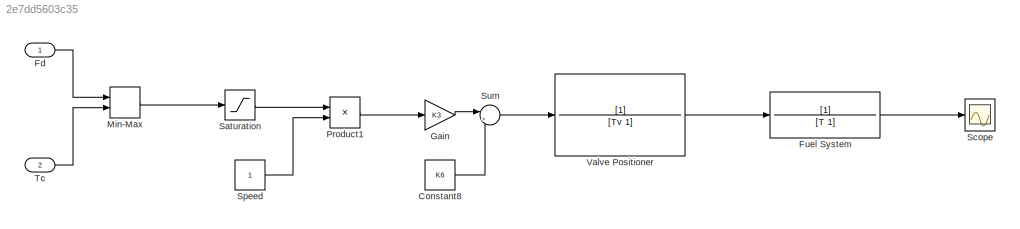
MODEL slx_2e7dd5603c35
KIND model
CONFIG AbsTol = auto
CONFIG EnableMultiTasking = off
CONFIG FixedStep = auto
CONFIG MaxStep = auto
CONFIG MinStep = auto
CONFIG RelTol = 1e-3
CONFIG SampleTimeConstraint = Unconstrained
CONFIG SolverName = VariableStepAuto
CONFIG StartTime = 0.0
CONFIG StopTime = 10.0
WORKSPACE source: mxarray member
WORKSPACE K3: Simulink.Parameter (value not decoded)
WORKSPACE K6: Simulink.Parameter (value not decoded)
WORKSPACE T: Simulink.Parameter (value not decoded)
WORKSPACE Tv: Simulink.Parameter (value not decoded)
BLOCK [Gain]  Gain 
  Gain = K3
BLOCK [Saturate]  Saturation 
BLOCK [Constant] Constant8
  Value = K6
BLOCK [Inport] Fd
BLOCK [TransferFcn] Fuel System
  Denominator = [T 1]
BLOCK [MinMax] Min-Max
  Inputs = 2
  Ports = [2, 1]
BLOCK [Product] Product1
  Ports = [2, 1]
BLOCK [Scope] Scope
  Floating = off
  NumInputPorts = 1
  Ports = [1]
  ScopeSpecificationString = Simulink.scopes.TimeScopeBlockCfg('CurrentConfiguration', extmgr.ConfigurationSet(extmgr.Configuration('Core','General UI',true),extmgr.Configuration('Core','Source UI',true),extmgr.Configuration('Sources','WiredSimulink',true),extmgr.Configuration('Visuals','Time Domain',true,'SerializedDisplays',{struct('MinYLimReal','90.00000','MaxYLimReal','110.00000','YLabelReal','','MinYLimMag','90.00000','M...<+1359ch>
BLOCK [Constant] Speed
BLOCK [Sum] Sum
  Inputs = |++
  Ports = [2, 1]
BLOCK [Inport] Tc
  Port = 2
BLOCK [TransferFcn] Valve Positioner
  Denominator = [Tv 1]
LINE  Gain :1 -> Sum:1
LINE  Saturation :1 -> Product1:1
LINE Constant8:1 -> Sum:2
LINE Fd:1 -> Min-Max:1
LINE Fuel System:1 -> Scope:1
LINE Min-Max:1 ->  Saturation :1
LINE Product1:1 ->  Gain :1
LINE Speed:1 -> Product1:2
LINE Sum:1 -> Valve Positioner:1
LINE Tc:1 -> Min-Max:2
LINE Valve Positioner:1 -> Fuel System:1
